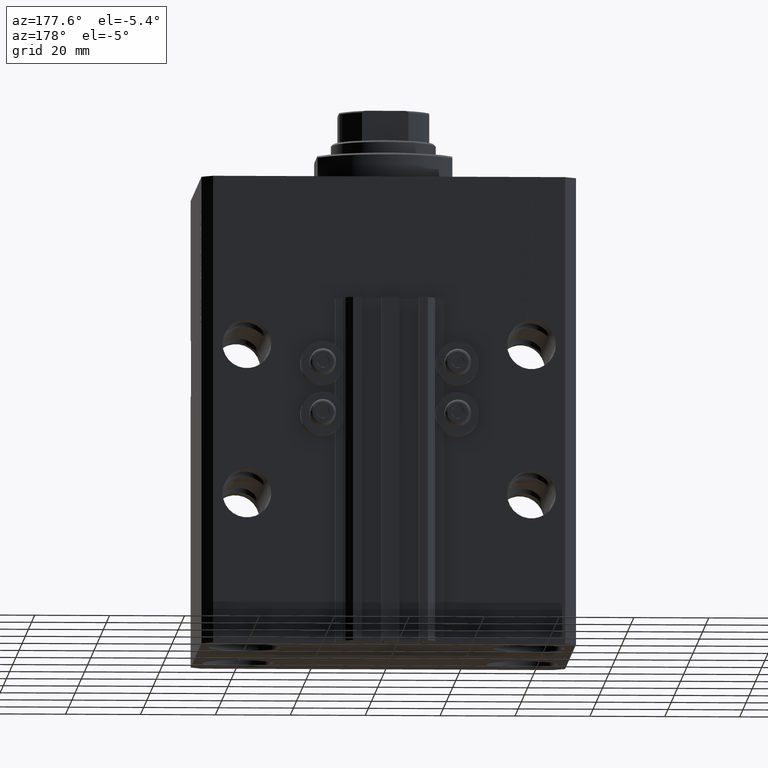
[diagram: clean part render]
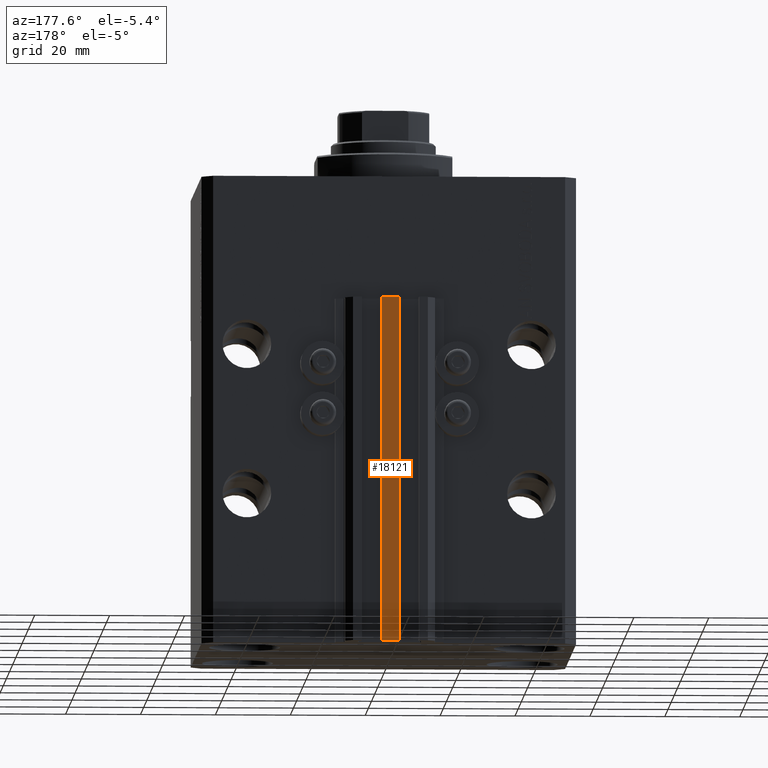
[diagram: same view with one face highlighted and labeled with its STEP entity id]
A machine part, auxiliary view. The second image highlights one B-rep face of the part: STEP entity #18121.
In plain terms, the highlighted planar face has unit normal (0, -1, 0).
Its self-contained STEP definition (entity closure, byte-faithful):
#1895 = CARTESIAN_POINT ( 'NONE',  ( -2.350000000000003642, 45.50000000000000711, -33.00000000000000000 ) ) ;
#1947 = CARTESIAN_POINT ( 'NONE',  ( 2.349999999999999645, 45.50000000000000711, -125.0000000000000000 ) ) ;
#3322 = VERTEX_POINT ( 'NONE', #5433 ) ;
#3919 = FACE_OUTER_BOUND ( 'NONE', #18493, .T. ) ;
#5433 = CARTESIAN_POINT ( 'NONE',  ( -2.350000000000003642, 45.50000000000000711, -125.0000000000000000 ) ) ;
#5754 = LINE ( 'NONE', #20139, #30100 ) ;
#6913 = ORIENTED_EDGE ( 'NONE', *, *, #19211, .F. ) ;
#8489 = DIRECTION ( 'NONE',  ( 1.000000000000000000, 0.000000000000000000, 0.000000000000000000 ) ) ;
#11181 = DIRECTION ( 'NONE',  ( 0.000000000000000000, 0.000000000000000000, 1.000000000000000000 ) ) ;
#11689 = AXIS2_PLACEMENT_3D ( 'NONE', #23356, #37055, #29765 ) ;
#14566 = CARTESIAN_POINT ( 'NONE',  ( -2.350000000000003642, 45.50000000000000711, -125.0000000000000000 ) ) ;
#14896 = ORIENTED_EDGE ( 'NONE', *, *, #39727, .T. ) ;
#17217 = DIRECTION ( 'NONE',  ( 0.000000000000000000, 0.000000000000000000, 1.000000000000000000 ) ) ;
#18121 = ADVANCED_FACE ( 'NONE', ( #3919 ), #33647, .F. ) ;
#18493 = EDGE_LOOP ( 'NONE', ( #22521, #6913, #32539, #14896 ) ) ;
#18604 = VECTOR ( 'NONE', #8489, 1000.000000000000000 ) ;
#19211 = EDGE_CURVE ( 'NONE', #29071, #42410, #29717, .T. ) ;
#19231 = EDGE_CURVE ( 'NONE', #44072, #42410, #34783, .T. ) ;
#20139 = CARTESIAN_POINT ( 'NONE',  ( -2.350000000000003642, 45.50000000000000711, -125.0000000000000000 ) ) ;
#21108 = CARTESIAN_POINT ( 'NONE',  ( 2.349999999999999645, 45.50000000000000711, -33.00000000000000000 ) ) ;
#21272 = EDGE_CURVE ( 'NONE', #3322, #29071, #48171, .T. ) ;
#22521 = ORIENTED_EDGE ( 'NONE', *, *, #19231, .T. ) ;
#23356 = CARTESIAN_POINT ( 'NONE',  ( -2.350000000000003642, 45.50000000000000711, -125.0000000000000000 ) ) ;
#29071 = VERTEX_POINT ( 'NONE', #1947 ) ;
#29717 = LINE ( 'NONE', #44560, #31865 ) ;
#29765 = DIRECTION ( 'NONE',  ( 0.000000000000000000, -0.000000000000000000, -1.000000000000000000 ) ) ;
#30100 = VECTOR ( 'NONE', #17217, 1000.000000000000000 ) ;
#31865 = VECTOR ( 'NONE', #11181, 1000.000000000000000 ) ;
#32539 = ORIENTED_EDGE ( 'NONE', *, *, #21272, .F. ) ;
#32679 = CARTESIAN_POINT ( 'NONE',  ( -2.350000000000003642, 45.50000000000000711, -33.00000000000000000 ) ) ;
#33647 = PLANE ( 'NONE',  #11689 ) ;
#34783 = LINE ( 'NONE', #1895, #18604 ) ;
#37055 = DIRECTION ( 'NONE',  ( 0.000000000000000000, -1.000000000000000000, 0.000000000000000000 ) ) ;
#39727 = EDGE_CURVE ( 'NONE', #3322, #44072, #5754, .T. ) ;
#42410 = VERTEX_POINT ( 'NONE', #21108 ) ;
#43572 = VECTOR ( 'NONE', #43803, 1000.000000000000000 ) ;
#43803 = DIRECTION ( 'NONE',  ( 1.000000000000000000, 0.000000000000000000, 0.000000000000000000 ) ) ;
#44072 = VERTEX_POINT ( 'NONE', #32679 ) ;
#44560 = CARTESIAN_POINT ( 'NONE',  ( 2.349999999999999645, 45.50000000000000711, -125.0000000000000000 ) ) ;
#48171 = LINE ( 'NONE', #14566, #43572 ) ;